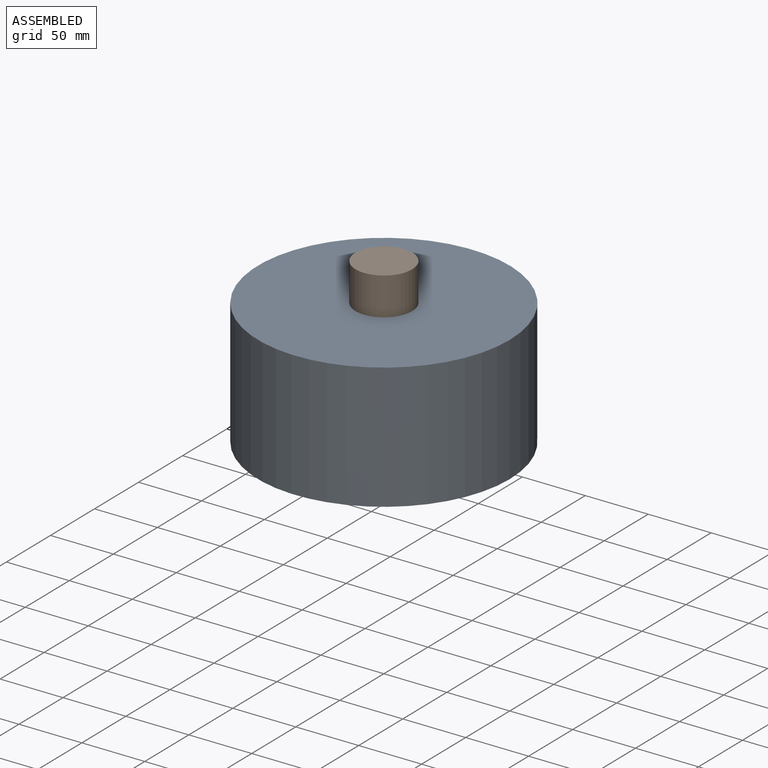
[diagram: assembled view]
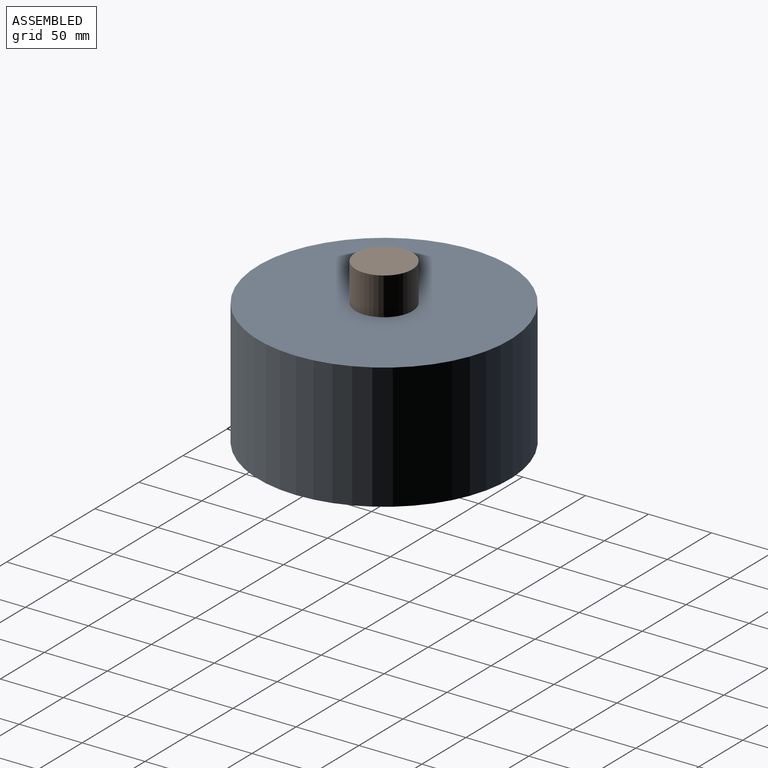
[diagram: assembled view, second angle]
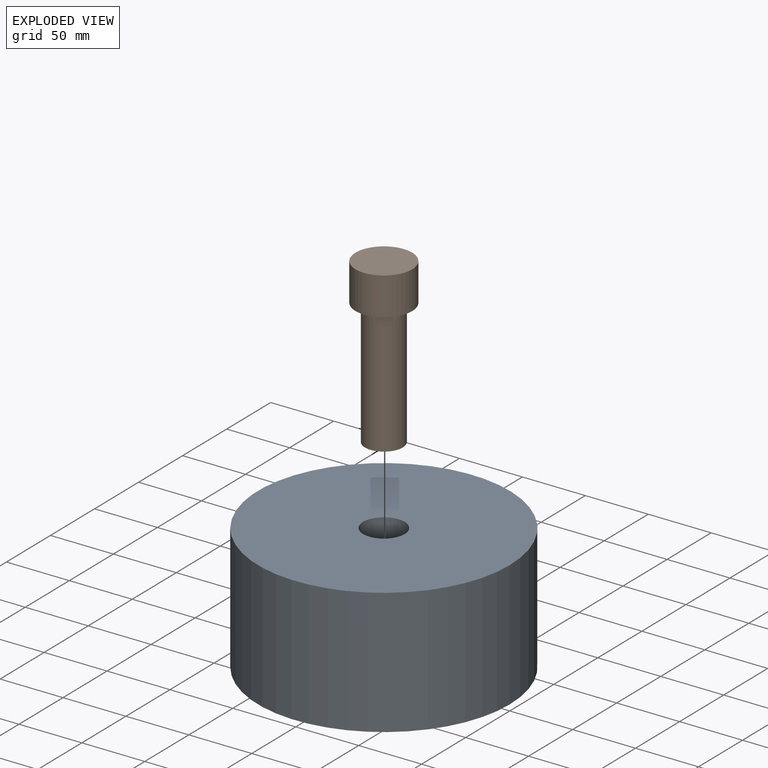
[diagram: exploded view]
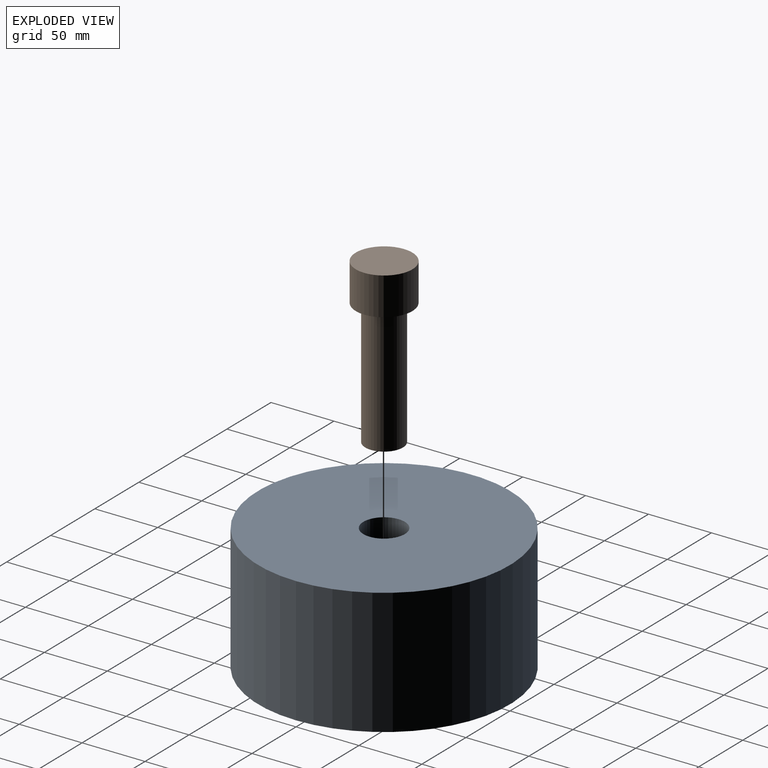
[diagram: exploded view, second angle]
ASSEMBLY  parts=2 mates=2
PART A: 4 faces, bbox 200x200x100 mm
  f0: cylinder r=16.5mm len=100mm, axis (0,0,1), area 10367.3mm2, adj f1,f3
  f1: plane 200x200mm, normal (0,0,1), area 30560.6mm2, adj f0,f2
  f2: cylinder r=100mm len=200mm, axis (0,0,1), area 62831.9mm2, adj f1,f3
  f3: plane 200x200mm, normal (0,0,-1), area 30560.6mm2, adj f0,f2
PART B: 5 faces, bbox 45x45x130 mm
  f0: plane 45x45mm, normal (0,0,1), area 1590.4mm2, adj f1
  f1: cylinder r=22.5mm len=45mm, axis (0,0,-1), area 4241.2mm2, adj f0,f2
  f2: plane 45x45mm, normal (0,0,-1), area 883.6mm2, adj f1,f3
  f3: cylinder r=15mm len=100mm, axis (0,0,-1), area 9424.8mm2, adj f2,f4
  f4: plane 30x30mm, normal (0,0,-1), area 706.9mm2, adj f3
PLACE A t=(0,0,50)mm
PLACE B t=(0,0,80)mm
MATE fastened A.f0 <-> B.f1  axis (0,0,1) through (0,0,50)mm
MATE slider B.f1 <-> A.f0  axis (0,0,-1) through (0,0,0)mm
